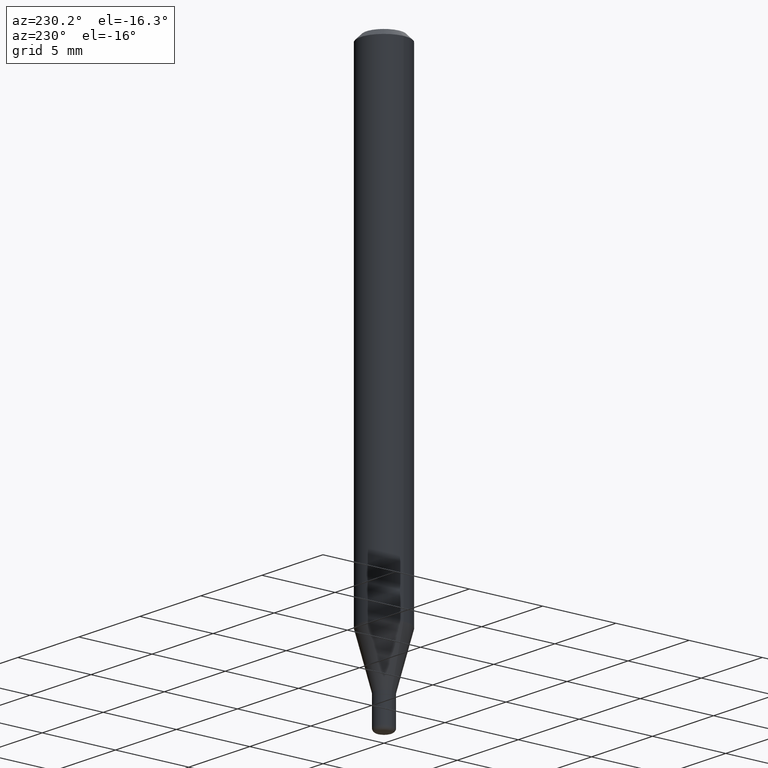
[diagram: clean part render]
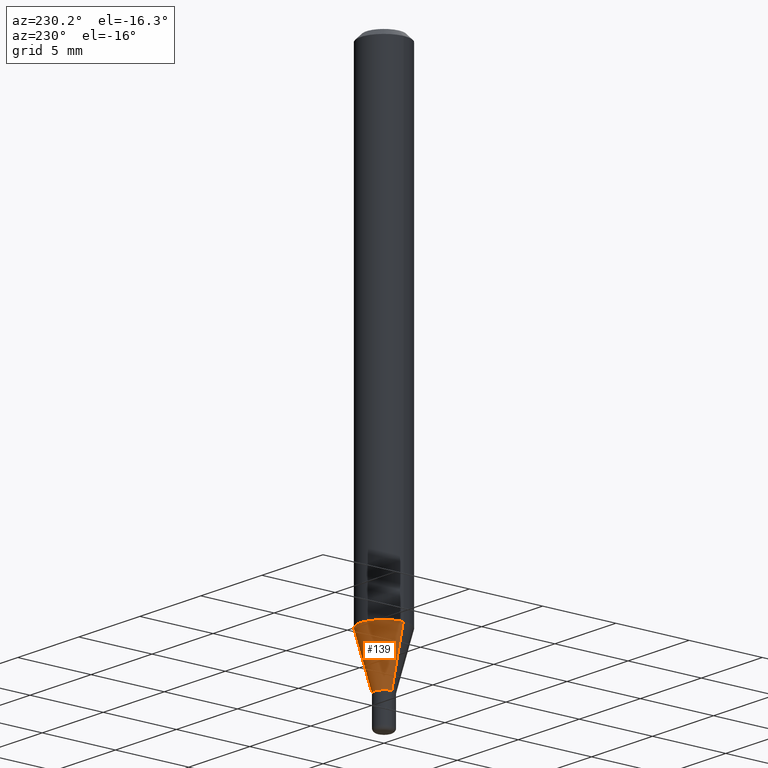
[diagram: same view with one face highlighted and labeled with its STEP entity id]
A machine part, auxiliary view. The second image highlights one B-rep face of the part: STEP entity #139.
In plain terms, the highlighted conical surface has half-angle 15 deg.
Its self-contained STEP definition (entity closure, byte-faithful):
#1 = EDGE_CURVE ( 'NONE', #122, #200, #353, .T. ) ;
#4 = ORIENTED_EDGE ( 'NONE', *, *, #1, .F. ) ;
#21 = FACE_OUTER_BOUND ( 'NONE', #43, .T. ) ;
#43 = EDGE_LOOP ( 'NONE', ( #79, #241, #4, #480 ) ) ;
#44 = CARTESIAN_POINT ( 'NONE',  ( -0.02499999999999998057, -4.385263914750983308E-15, -1.415000000000000036 ) ) ;
#45 = VECTOR ( 'NONE', #62, 39.37007874015748143 ) ;
#62 = DIRECTION ( 'NONE',  ( -0.2588190451025205174, 5.211531920934544731E-15, 0.9659258262890684232 ) ) ;
#67 = EDGE_CURVE ( 'NONE', #426, #396, #75, .T. ) ;
#75 = CIRCLE ( 'NONE', #201, 0.02499999999999998057 ) ;
#79 = ORIENTED_EDGE ( 'NONE', *, *, #67, .T. ) ;
#91 = CONICAL_SURFACE ( 'NONE', #360, 0.02499999999999998057, 0.2617993877991491858 ) ;
#99 = VECTOR ( 'NONE', #443, 39.37007874015748143 ) ;
#119 = CARTESIAN_POINT ( 'NONE',  ( 3.460338360751968441E-29, -4.940446094463050737E-15, -1.415000000000000036 ) ) ;
#122 = VERTEX_POINT ( 'NONE', #407 ) ;
#139 = ADVANCED_FACE ( 'NONE', ( #21 ), #91, .T. ) ;
#175 = EDGE_CURVE ( 'NONE', #426, #122, #214, .T. ) ;
#182 = DIRECTION ( 'NONE',  ( -2.445468806185136597E-29, 3.491481338843145583E-15, 1.000000000000000000 ) ) ;
#187 = DIRECTION ( 'NONE',  ( 1.000000000000000000, -6.982962677686260400E-15, 0.000000000000000000 ) ) ;
#200 = VERTEX_POINT ( 'NONE', #454 ) ;
#201 = AXIS2_PLACEMENT_3D ( 'NONE', #119, #301, #187 ) ;
#214 = LINE ( 'NONE', #494, #99 ) ;
#241 = ORIENTED_EDGE ( 'NONE', *, *, #431, .T. ) ;
#260 = CARTESIAN_POINT ( 'NONE',  ( 0.02499999999999998057, -5.115020161405207405E-15, -1.415000000000000036 ) ) ;
#273 = CARTESIAN_POINT ( 'NONE',  ( 3.118090342014177952E-29, -4.451806628829005278E-15, -1.275048094716166869 ) ) ;
#301 = DIRECTION ( 'NONE',  ( -2.445468806185136597E-29, 3.491481338843145583E-15, 1.000000000000000000 ) ) ;
#325 = LINE ( 'NONE', #447, #45 ) ;
#353 = CIRCLE ( 'NONE', #375, 0.06250000000000000000 ) ;
#360 = AXIS2_PLACEMENT_3D ( 'NONE', #501, #182, #455 ) ;
#375 = AXIS2_PLACEMENT_3D ( 'NONE', #273, #425, #512 ) ;
#396 = VERTEX_POINT ( 'NONE', #44 ) ;
#407 = CARTESIAN_POINT ( 'NONE',  ( 0.06250000000000000000, -4.888241796184395369E-15, -1.275048094716166869 ) ) ;
#425 = DIRECTION ( 'NONE',  ( -2.445468806185136597E-29, 3.491481338843145583E-15, 1.000000000000000000 ) ) ;
#426 = VERTEX_POINT ( 'NONE', #260 ) ;
#431 = EDGE_CURVE ( 'NONE', #396, #200, #325, .T. ) ;
#443 = DIRECTION ( 'NONE',  ( 0.2588190451025205174, 1.565188264969628476E-15, 0.9659258262890684232 ) ) ;
#447 = CARTESIAN_POINT ( 'NONE',  ( -0.02499999999999998057, -4.762810410523025533E-15, -1.415000000000000036 ) ) ;
#454 = CARTESIAN_POINT ( 'NONE',  ( -0.06250000000000000000, -4.007717418978941084E-15, -1.275048094716166869 ) ) ;
#455 = DIRECTION ( 'NONE',  ( 1.000000000000000000, -6.982962677686260400E-15, 0.000000000000000000 ) ) ;
#480 = ORIENTED_EDGE ( 'NONE', *, *, #175, .F. ) ;
#494 = CARTESIAN_POINT ( 'NONE',  ( 0.02499999999999998057, -5.115020161405207405E-15, -1.415000000000000036 ) ) ;
#501 = CARTESIAN_POINT ( 'NONE',  ( 3.460338360751968441E-29, -4.940446094463050737E-15, -1.415000000000000036 ) ) ;
#512 = DIRECTION ( 'NONE',  ( 1.000000000000000000, -6.982962677686262766E-15, 0.000000000000000000 ) ) ;